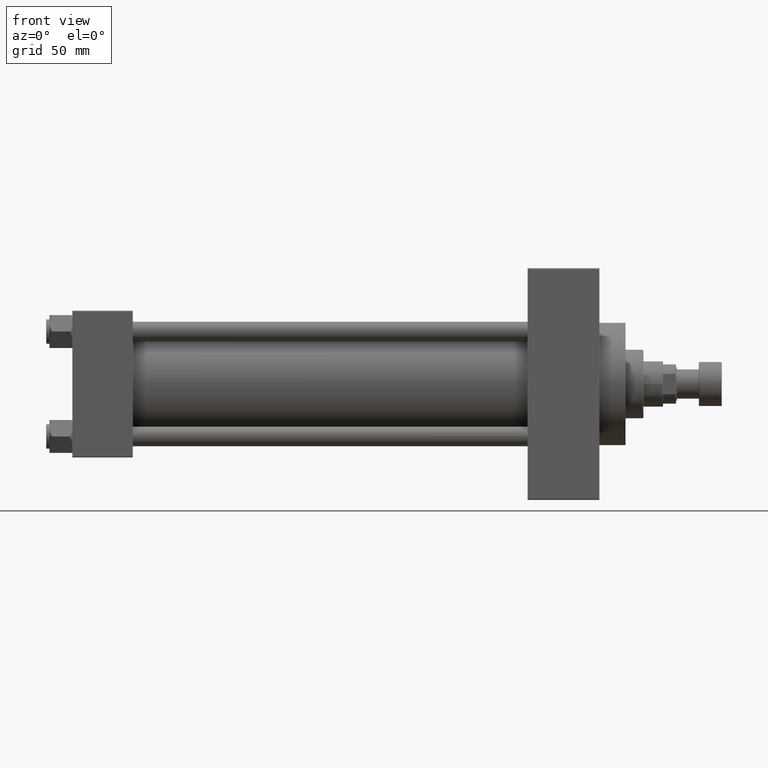
[diagram: clean part render]
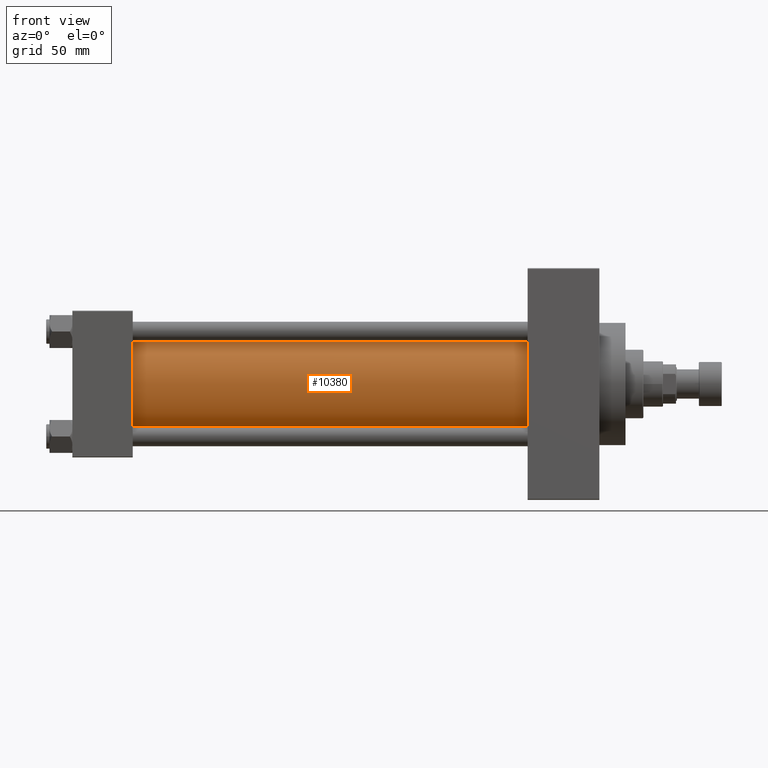
[diagram: same view with one face highlighted and labeled with its STEP entity id]
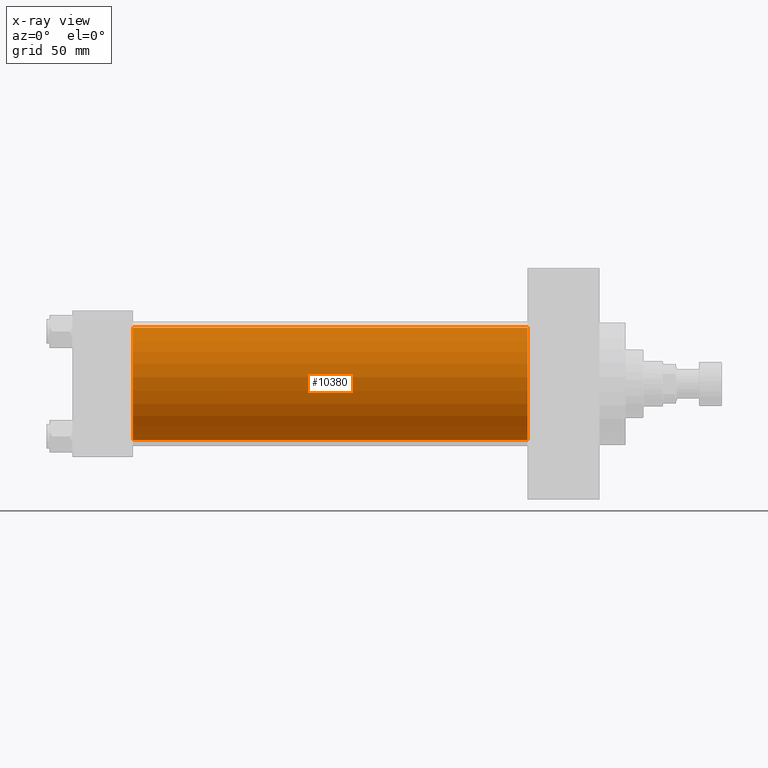
[diagram: x-ray of the same camera — body ghosted, the highlighted face saturated]
A machine part, front view. The second image highlights one B-rep face of the part: STEP entity #10380.
The next image is the same camera in x-ray: the body ghosted, the highlighted face saturated — about 0% of this face is hidden behind the body in this view.
In plain terms, the highlighted cylindrical surface (partial cylindrical patch) has radius 34.5 mm, axis along (-1, -0, -0).
Its self-contained STEP definition (entity closure, byte-faithful):
#2063 = AXIS2_PLACEMENT_3D ( 'NONE', #3138, #45888, #22518 ) ;
#3083 = VERTEX_POINT ( 'NONE', #10561 ) ;
#3138 = CARTESIAN_POINT ( 'NONE',  ( 37.00000000000000711, -2.602085213965210642E-15, 0.000000000000000000 ) ) ;
#5922 = EDGE_CURVE ( 'NONE', #17980, #3083, #42511, .T. ) ;
#6162 = EDGE_CURVE ( 'NONE', #17980, #25458, #12618, .T. ) ;
#7416 = DIRECTION ( 'NONE',  ( -1.000000000000000000, -0.000000000000000000, -0.000000000000000000 ) ) ;
#8631 = AXIS2_PLACEMENT_3D ( 'NONE', #31134, #22615, #41955 ) ;
#10380 = ADVANCED_FACE ( 'NONE', ( #10702 ), #33083, .T. ) ;
#10561 = CARTESIAN_POINT ( 'NONE',  ( 37.00000000000000711, -2.602085213965210642E-15, 34.50000000000000000 ) ) ;
#10702 = FACE_OUTER_BOUND ( 'NONE', #39021, .T. ) ;
#12290 = ORIENTED_EDGE ( 'NONE', *, *, #40076, .F. ) ;
#12618 = CIRCLE ( 'NONE', #8631, 34.50000000000000000 ) ;
#15553 = CARTESIAN_POINT ( 'NONE',  ( 278.9999999999999432, -2.602085213965210642E-15, 34.50000000000000000 ) ) ;
#17980 = VERTEX_POINT ( 'NONE', #15553 ) ;
#18512 = ORIENTED_EDGE ( 'NONE', *, *, #5922, .T. ) ;
#19388 = EDGE_CURVE ( 'NONE', #3083, #45053, #47861, .T. ) ;
#20502 = ORIENTED_EDGE ( 'NONE', *, *, #19388, .T. ) ;
#22518 = DIRECTION ( 'NONE',  ( 0.000000000000000000, 0.000000000000000000, 1.000000000000000000 ) ) ;
#22615 = DIRECTION ( 'NONE',  ( 1.000000000000000000, 0.000000000000000000, 0.000000000000000000 ) ) ;
#23009 = LINE ( 'NONE', #31043, #41870 ) ;
#24687 = VECTOR ( 'NONE', #34947, 1000.000000000000000 ) ;
#25458 = VERTEX_POINT ( 'NONE', #39566 ) ;
#26034 = DIRECTION ( 'NONE',  ( 0.000000000000000000, 0.000000000000000000, 1.000000000000000000 ) ) ;
#27165 = CARTESIAN_POINT ( 'NONE',  ( 278.9999999999999432, -2.602085213965210642E-15, 34.50000000000000000 ) ) ;
#31043 = CARTESIAN_POINT ( 'NONE',  ( 278.9999999999999432, 1.622946243093158675E-15, -34.50000000000000000 ) ) ;
#31134 = CARTESIAN_POINT ( 'NONE',  ( 278.9999999999999432, -2.602085213965210642E-15, 0.000000000000000000 ) ) ;
#33083 = CYLINDRICAL_SURFACE ( 'NONE', #43986, 34.50000000000000000 ) ;
#34947 = DIRECTION ( 'NONE',  ( -1.000000000000000000, -0.000000000000000000, -0.000000000000000000 ) ) ;
#34998 = ORIENTED_EDGE ( 'NONE', *, *, #6162, .F. ) ;
#36612 = CARTESIAN_POINT ( 'NONE',  ( 278.9999999999999432, -2.602085213965210642E-15, 0.000000000000000000 ) ) ;
#37095 = CARTESIAN_POINT ( 'NONE',  ( 37.00000000000000711, 1.622946243093158675E-15, -34.50000000000000000 ) ) ;
#39021 = EDGE_LOOP ( 'NONE', ( #12290, #34998, #18512, #20502 ) ) ;
#39566 = CARTESIAN_POINT ( 'NONE',  ( 278.9999999999999432, 1.622946243093158675E-15, -34.50000000000000000 ) ) ;
#40076 = EDGE_CURVE ( 'NONE', #25458, #45053, #23009, .T. ) ;
#41870 = VECTOR ( 'NONE', #7416, 1000.000000000000000 ) ;
#41955 = DIRECTION ( 'NONE',  ( 0.000000000000000000, 0.000000000000000000, -1.000000000000000000 ) ) ;
#42511 = LINE ( 'NONE', #27165, #24687 ) ;
#43986 = AXIS2_PLACEMENT_3D ( 'NONE', #36612, #45148, #26034 ) ;
#45053 = VERTEX_POINT ( 'NONE', #37095 ) ;
#45148 = DIRECTION ( 'NONE',  ( -1.000000000000000000, -0.000000000000000000, -0.000000000000000000 ) ) ;
#45888 = DIRECTION ( 'NONE',  ( 1.000000000000000000, -0.000000000000000000, 0.000000000000000000 ) ) ;
#47861 = CIRCLE ( 'NONE', #2063, 34.50000000000000000 ) ;